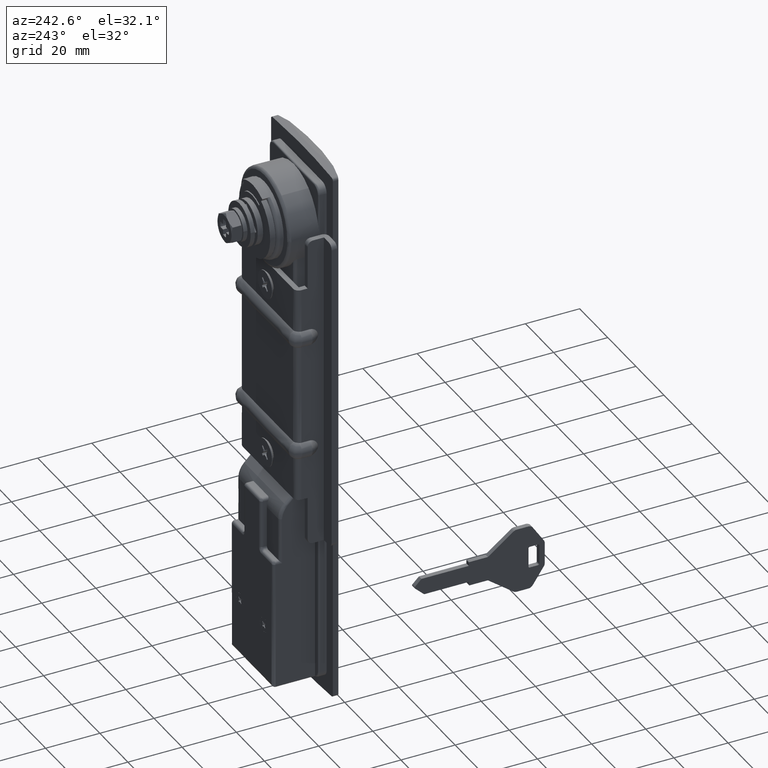
[diagram: clean part render]
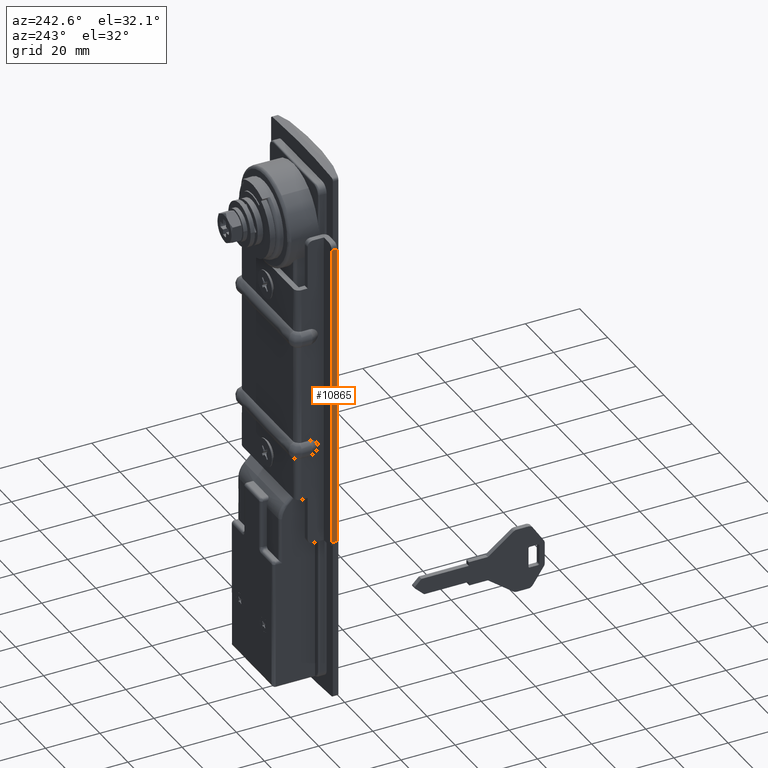
[diagram: same view with one face highlighted and labeled with its STEP entity id]
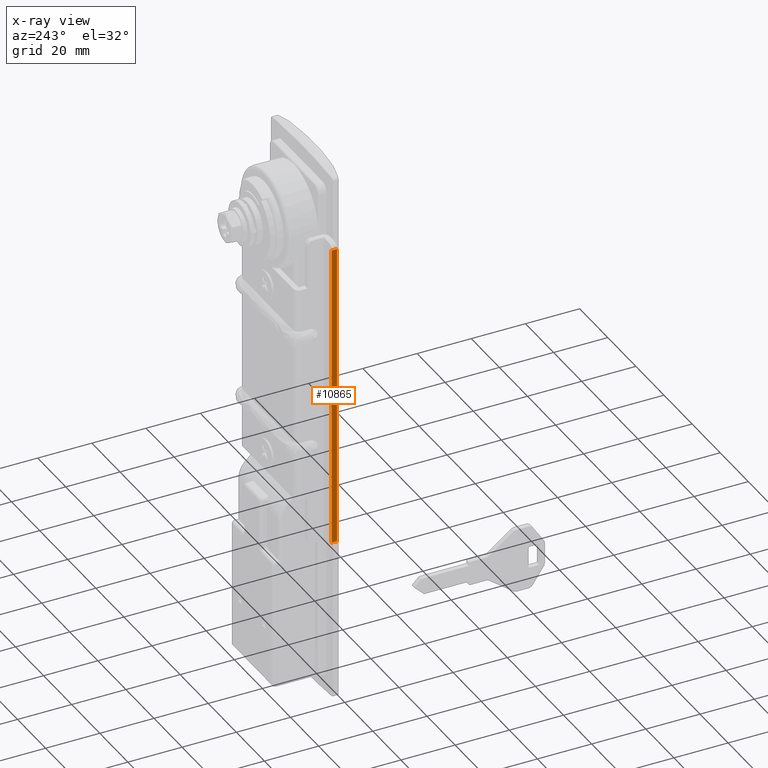
[diagram: x-ray of the same camera — body ghosted, the highlighted face saturated]
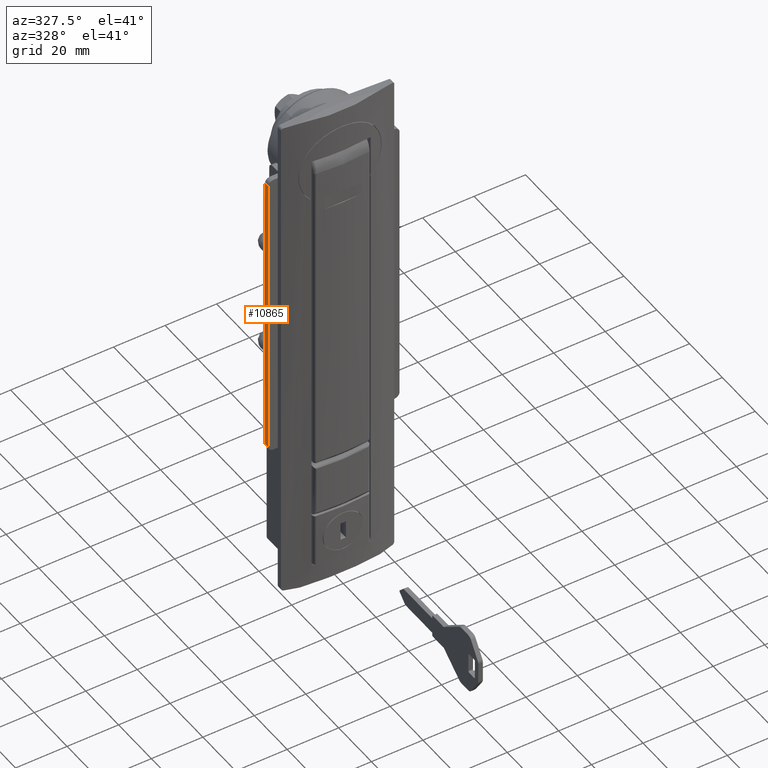
[diagram: same view with one face highlighted and labeled with its STEP entity id]
A machine part, auxiliary view. The second image highlights one B-rep face of the part: STEP entity #10865.
The next image is the same camera in x-ray: the body ghosted, the highlighted face saturated — about 0% of this face is hidden behind the body in this view.
A second angle (auxiliary view) of the same face is appended — the face is thin or edge-on in the first view.
In plain terms, the highlighted face is a freeform B-spline surface patch.
Its self-contained STEP definition (entity closure, byte-faithful):
#9287=CARTESIAN_POINT('',(7.700000000000000,25.500000000000000,-115.0));
#9288=VERTEX_POINT('',#9287);
#9309=CARTESIAN_POINT('',(5.699999999999930,25.500000000000000,-115.0));
#9310=VERTEX_POINT('',#9309);
#9324=CARTESIAN_POINT('',(7.700000000000000,25.500000000000000,-115.0));
#9325=CARTESIAN_POINT('',(5.699999999999930,25.500000000000000,-115.0));
#9326=QUASI_UNIFORM_CURVE('',1,(#9324,#9325),.UNSPECIFIED.,.F.,.U.);
#9327=EDGE_CURVE('',#9288,#9310,#9326,.T.);
#9346=CARTESIAN_POINT('',(7.700000000000000,25.500000000000000,-2.0));
#9347=VERTEX_POINT('',#9346);
#9363=CARTESIAN_POINT('',(5.699999999999930,25.500000000000000,-2.0));
#9364=VERTEX_POINT('',#9363);
#9365=CARTESIAN_POINT('',(5.699999999999930,25.500000000000000,-2.0));
#9366=CARTESIAN_POINT('',(7.700000000000000,25.500000000000000,-2.0));
#9367=QUASI_UNIFORM_CURVE('',1,(#9365,#9366),.UNSPECIFIED.,.F.,.U.);
#9368=EDGE_CURVE('',#9364,#9347,#9367,.T.);
#10846=CARTESIAN_POINT('',(5.600099811646865,25.500000000000000,-120.644349780984100));
#10847=CARTESIAN_POINT('',(5.600099811646865,25.500000000000000,3.644352811880258));
#10848=CARTESIAN_POINT('',(7.799899759199624,25.500000000000000,-120.644349780984100));
#10849=CARTESIAN_POINT('',(7.799899759199624,25.500000000000000,3.644352811880258));
#10850=B_SPLINE_SURFACE_WITH_KNOTS('',1,1,((#10846,#10848),(#10847,#10849)),.UNSPECIFIED.,.F.,.F.,.U.,(2,2),(2,2),(0.0,124.288702592864300),(0.0,2.199799947552759),.UNSPECIFIED.);
#10851=CARTESIAN_POINT('',(5.699999999999930,25.500000000000000,-115.0));
#10852=CARTESIAN_POINT('',(5.699999999999930,25.500000000000000,-2.0));
#10853=QUASI_UNIFORM_CURVE('',1,(#10851,#10852),.UNSPECIFIED.,.F.,.U.);
#10854=EDGE_CURVE('',#9310,#9364,#10853,.T.);
#10855=ORIENTED_EDGE('',*,*,#10854,.T.);
#10856=ORIENTED_EDGE('',*,*,#9368,.T.);
#10857=CARTESIAN_POINT('',(7.700000000000000,25.500000000000000,-115.0));
#10858=CARTESIAN_POINT('',(7.700000000000000,25.500000000000000,-2.0));
#10859=QUASI_UNIFORM_CURVE('',1,(#10857,#10858),.UNSPECIFIED.,.F.,.U.);
#10860=EDGE_CURVE('',#9288,#9347,#10859,.T.);
#10861=ORIENTED_EDGE('',*,*,#10860,.F.);
#10862=ORIENTED_EDGE('',*,*,#9327,.T.);
#10863=EDGE_LOOP('',(#10855,#10856,#10861,#10862));
#10864=FACE_OUTER_BOUND('',#10863,.T.);
#10865=ADVANCED_FACE('',(#10864),#10850,.T.);